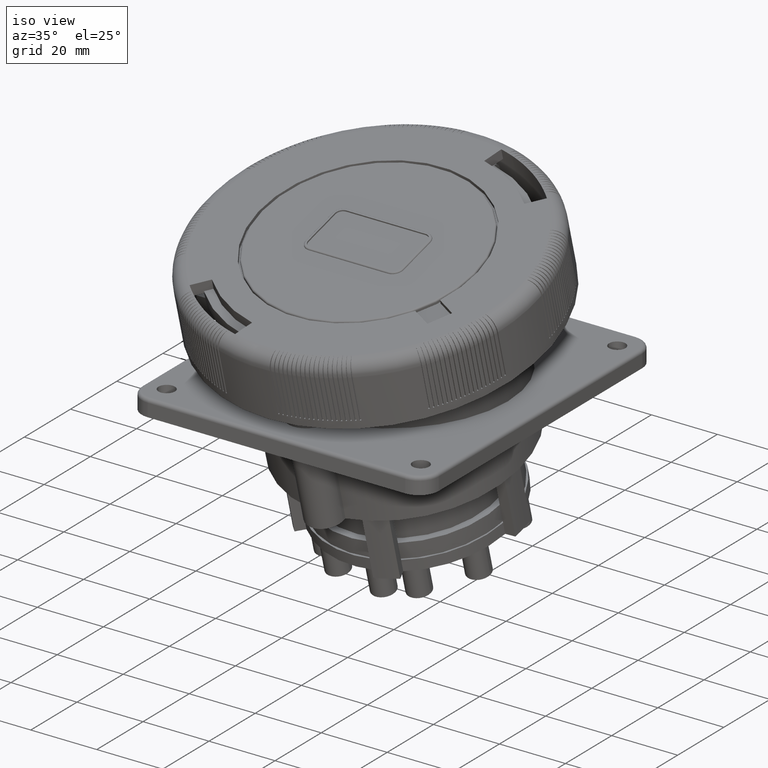
[diagram: clean part render]
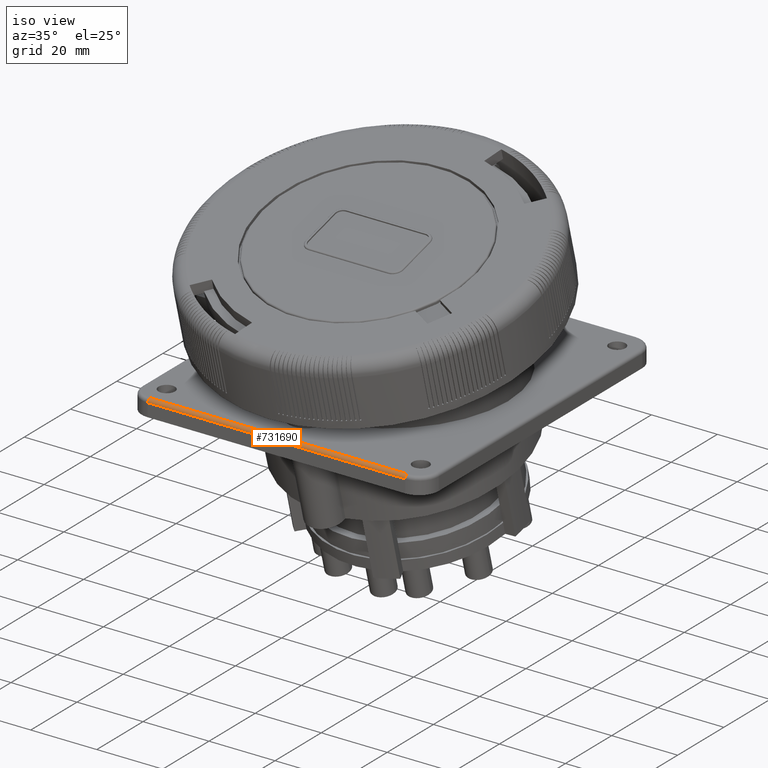
[diagram: same view with one face highlighted and labeled with its STEP entity id]
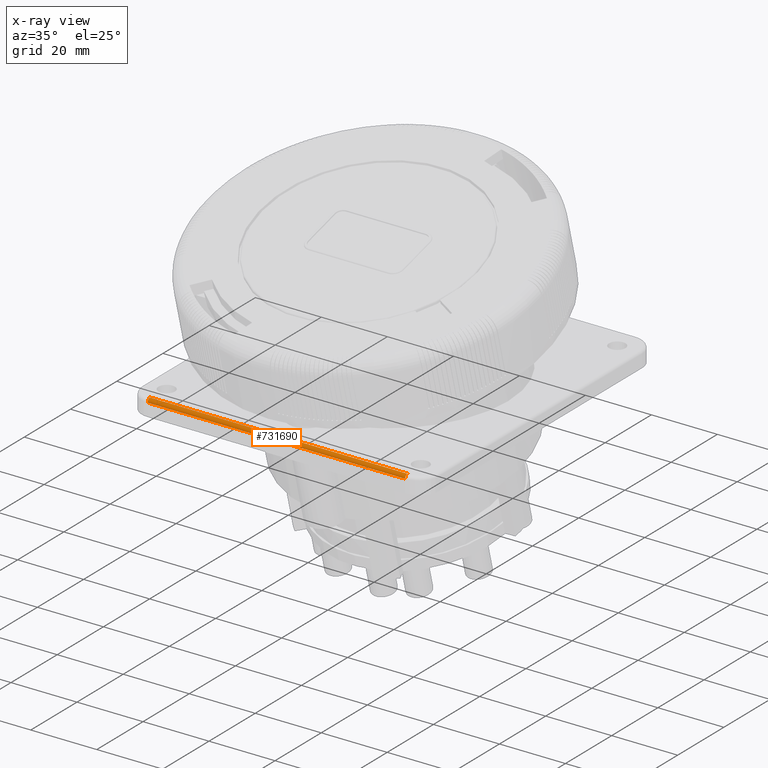
[diagram: x-ray of the same camera — body ghosted, the highlighted face saturated]
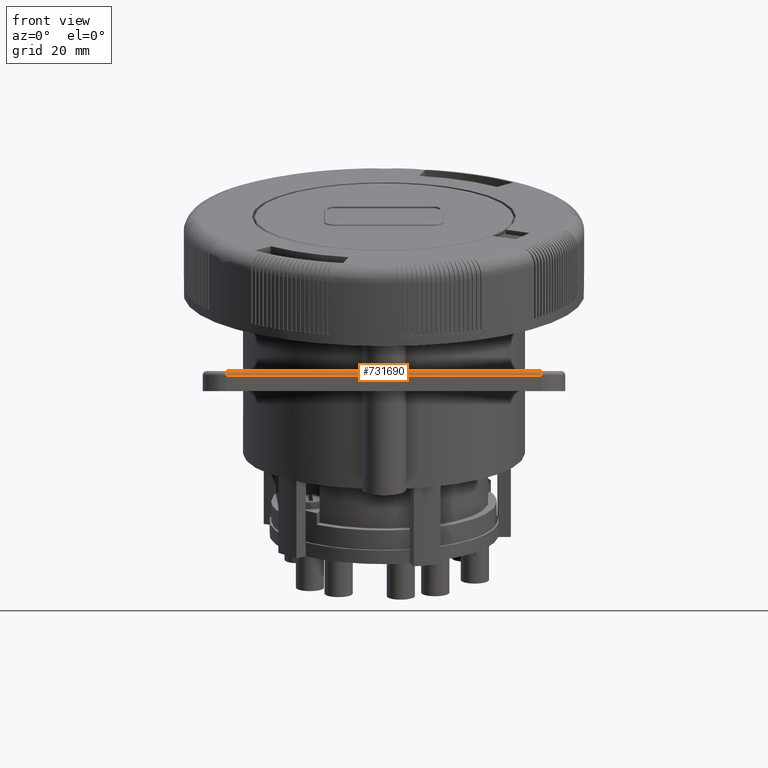
[diagram: same view with one face highlighted and labeled with its STEP entity id]
A machine part, iso view. The second image highlights one B-rep face of the part: STEP entity #731690.
The next image is the same camera in x-ray: the body ghosted, the highlighted face saturated — about 0% of this face is hidden behind the body in this view.
A second angle (front view) of the same face is appended — the face is thin or edge-on in the first view.
In plain terms, the highlighted cylindrical surface (edge-blend (fillet) strip) has radius 1 mm, axis along (1, 0, 0).
Its self-contained STEP definition (entity closure, byte-faithful):
#716270=CARTESIAN_POINT('',(105.006321378453,25.5711354728797,
-7.31786727158215));
#716280=VERTEX_POINT('',#716270);
#716330=CARTESIAN_POINT('',(47.452698752062,-5.90807230906644,
-7.31786727158215));
#716340=DIRECTION('',(-0.877341808329136,-0.479865972285765,
3.46519046242032E-17));
#716350=VECTOR('',#716340,1.);
#716360=LINE('',#716330,#716350);
#716370=CARTESIAN_POINT('',(36.5736603287807,-11.8584103654099,
-7.31786727158215));
#716380=VERTEX_POINT('',#716370);
#716390=EDGE_CURVE('',#716280,#716380,#716360,.T.);
#731180=CARTESIAN_POINT('',(105.594034766966,24.4966155926712,
-8.0249740527687));
#731190=VERTEX_POINT('',#731180);
#731390=CARTESIAN_POINT('',(47.5768972047862,-6.1351450781267,
-8.28379309787122));
#731400=DIRECTION('',(0.877341808329136,0.479865972285765,
-3.46519046242032E-17));
#731410=DIRECTION('',(0.463514935788134,-0.847447111148266,
0.25881904510252));
#731420=AXIS2_PLACEMENT_3D('',#731390,#731400,#731410);
#731430=CYLINDRICAL_SURFACE('',#731420,1.);
#731440=CARTESIAN_POINT('',(105.130519831178,25.3440627038195,
-8.28379309787122));
#731450=DIRECTION('',(0.877341808329136,0.479865972285765,
-3.46519046242032E-17));
#731460=DIRECTION('',(0.463514935788134,-0.847447111148266,
0.25881904510252));
#731470=AXIS2_PLACEMENT_3D('',#731440,#731450,#731460);
#731480=CIRCLE('',#731470,1.);
#731490=EDGE_CURVE('',#716280,#731190,#731480,.T.);
#731500=ORIENTED_EDGE('',*,*,#731490,.F.);
#731510=CARTESIAN_POINT('',(48.0404121405743,-6.98259218927497,
-8.0249740527687));
#731520=DIRECTION('',(-0.877341808329136,-0.479865972285765,
3.46519046242032E-17));
#731530=VECTOR('',#731520,1.);
#731540=LINE('',#731510,#731530);
#731550=CARTESIAN_POINT('',(37.1613737172931,-12.9329302456185,
-8.0249740527687));
#731560=VERTEX_POINT('',#731550);
#731570=EDGE_CURVE('',#731190,#731560,#731540,.T.);
#731580=ORIENTED_EDGE('',*,*,#731570,.F.);
#731590=CARTESIAN_POINT('',(36.6978587815049,-12.0854831344702,
-8.28379309787122));
#731600=DIRECTION('',(0.877341808329136,0.479865972285765,
-3.46519046242032E-17));
#731610=DIRECTION('',(0.463514935788134,-0.847447111148266,
0.25881904510252));
#731620=AXIS2_PLACEMENT_3D('',#731590,#731600,#731610);
#731630=CIRCLE('',#731620,1.);
#731640=EDGE_CURVE('',#716380,#731560,#731630,.T.);
#731650=ORIENTED_EDGE('',*,*,#731640,.T.);
#731660=ORIENTED_EDGE('',*,*,#716390,.T.);
#731670=EDGE_LOOP('',(#731660,#731650,#731580,#731500));
#731680=FACE_OUTER_BOUND('',#731670,.T.);
#731690=ADVANCED_FACE('',(#731680),#731430,.T.);